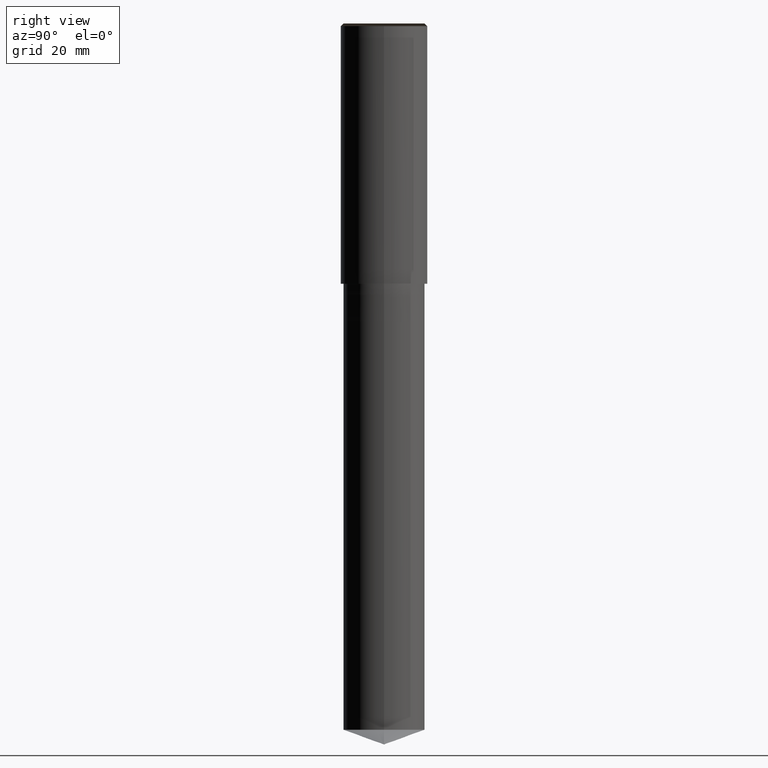
[diagram: clean part render]
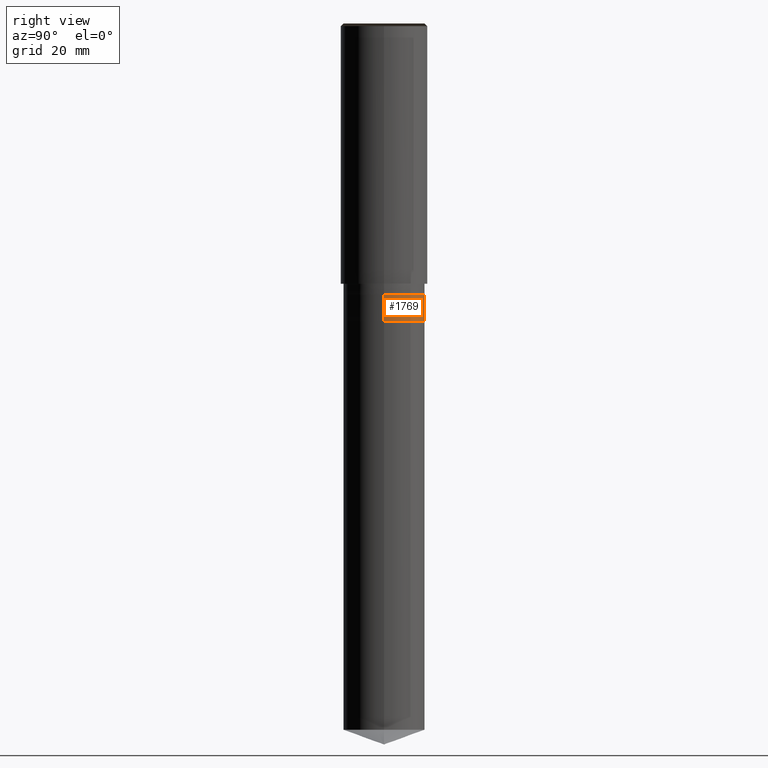
[diagram: same view with one face highlighted and labeled with its STEP entity id]
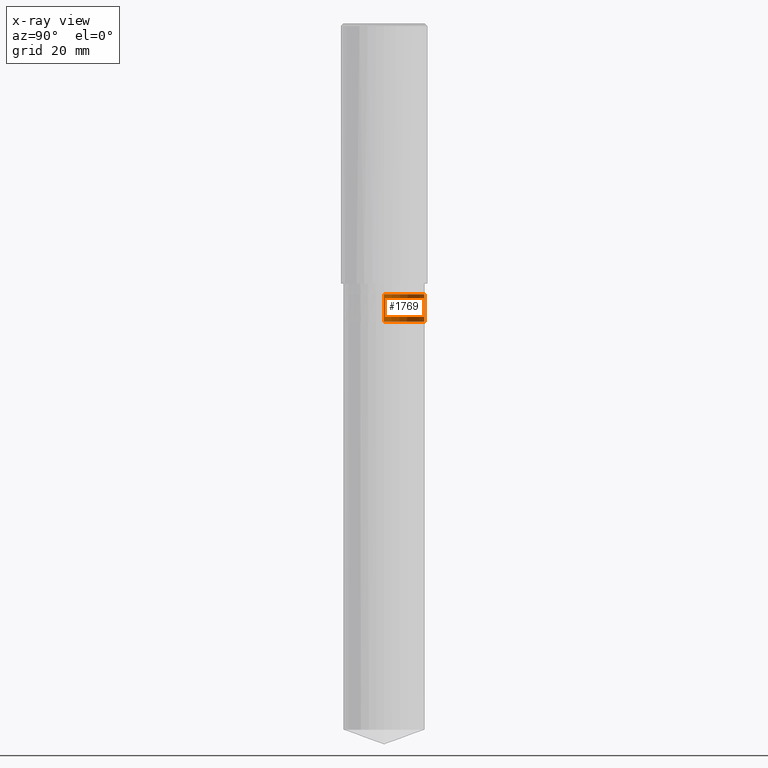
[diagram: x-ray of the same camera — body ghosted, the highlighted face saturated]
A machine part, right view. The second image highlights one B-rep face of the part: STEP entity #1769.
The next image is the same camera in x-ray: the body ghosted, the highlighted face saturated — about 0% of this face is hidden behind the body in this view.
In plain terms, the highlighted face is a freeform B-spline surface patch.
Its self-contained STEP definition (entity closure, byte-faithful):
#1568=CARTESIAN_POINT('',(7.5,0.0,-7.0));
#1569=CARTESIAN_POINT('',(7.5,7.5,-7.0));
#1570=CARTESIAN_POINT('',(0.0,7.5,-7.0));
#1571=CARTESIAN_POINT('',(-7.5,7.5,-7.0));
#1572=CARTESIAN_POINT('',(-7.5,0.0,-7.0));
#1580=CARTESIAN_POINT('',(7.5,0.0,-2.0));
#1581=CARTESIAN_POINT('',(7.5,7.5,-2.0));
#1582=CARTESIAN_POINT('',(0.0,7.5,-2.0));
#1583=CARTESIAN_POINT('',(-7.5,7.5,-2.0));
#1584=CARTESIAN_POINT('',(-7.5,0.0,-2.0));
#1750=(
BOUNDED_SURFACE()
B_SPLINE_SURFACE(1,2,(
(#1568,#1569,#1570,#1571,#1572),
(#1580,#1581,#1582,#1583,#1584)
), .UNSPECIFIED.,.F.,.F.,.F.)
B_SPLINE_SURFACE_WITH_KNOTS((2,2),(3,2,3),(
0.0,1.0),(
0.0,0.5,1.0), .UNSPECIFIED.)
GEOMETRIC_REPRESENTATION_ITEM()
RATIONAL_B_SPLINE_SURFACE(((1.0,0.707106781187,1.0,0.707106781187,1.0),
(1.0,0.707106781187,1.0,0.707106781187,1.0)
))
REPRESENTATION_ITEM('')
SURFACE()
);
#1751=(
BOUNDED_CURVE()
B_SPLINE_CURVE(2,(#1572,#1571,#1570,#1569,#1568),.UNSPECIFIED.,.F.,.F.)
B_SPLINE_CURVE_WITH_KNOTS((3,2,3),
(0.0,0.5,1.0),.UNSPECIFIED.)
CURVE()
GEOMETRIC_REPRESENTATION_ITEM()
RATIONAL_B_SPLINE_CURVE((1.0,0.707106781187,1.0,0.707106781187,1.0))
REPRESENTATION_ITEM('')
);
#1752=(
BOUNDED_CURVE()
B_SPLINE_CURVE(1,(#1568,#1580),.UNSPECIFIED.,.F.,.F.)
B_SPLINE_CURVE_WITH_KNOTS((2,2),
(0.0,1.0),.UNSPECIFIED.)
CURVE()
GEOMETRIC_REPRESENTATION_ITEM()
RATIONAL_B_SPLINE_CURVE((1.0,1.0))
REPRESENTATION_ITEM('')
);
#1753=(
BOUNDED_CURVE()
B_SPLINE_CURVE(2,(#1580,#1581,#1582,#1583,#1584),.UNSPECIFIED.,.F.,.F.)
B_SPLINE_CURVE_WITH_KNOTS((3,2,3),
(0.0,0.5,1.0),.UNSPECIFIED.)
CURVE()
GEOMETRIC_REPRESENTATION_ITEM()
RATIONAL_B_SPLINE_CURVE((1.0,0.707106781187,1.0,0.707106781187,1.0))
REPRESENTATION_ITEM('')
);
#1754=(
BOUNDED_CURVE()
B_SPLINE_CURVE(1,(#1584,#1572),.UNSPECIFIED.,.F.,.F.)
B_SPLINE_CURVE_WITH_KNOTS((2,2),
(0.0,1.0),.UNSPECIFIED.)
CURVE()
GEOMETRIC_REPRESENTATION_ITEM()
RATIONAL_B_SPLINE_CURVE((1.0,1.0))
REPRESENTATION_ITEM('')
);
#1755=VERTEX_POINT('',#1568);
#1756=VERTEX_POINT('',#1572);
#1757=VERTEX_POINT('',#1580);
#1758=VERTEX_POINT('',#1584);
#1759=EDGE_CURVE('',#1756,#1755,#1751,.T.);
#1760=EDGE_CURVE('',#1755,#1757,#1752,.T.);
#1761=EDGE_CURVE('',#1757,#1758,#1753,.T.);
#1762=EDGE_CURVE('',#1758,#1756,#1754,.T.);
#1763=ORIENTED_EDGE('',*,*,#1759,.T.);
#1764=ORIENTED_EDGE('',*,*,#1760,.T.);
#1765=ORIENTED_EDGE('',*,*,#1761,.T.);
#1766=ORIENTED_EDGE('',*,*,#1762,.T.);
#1767=EDGE_LOOP('',(#1763,#1764,#1765,#1766));
#1768=FACE_OUTER_BOUND('',#1767,.T.);
#1769=ADVANCED_FACE('',(#1768),#1750,.T.);